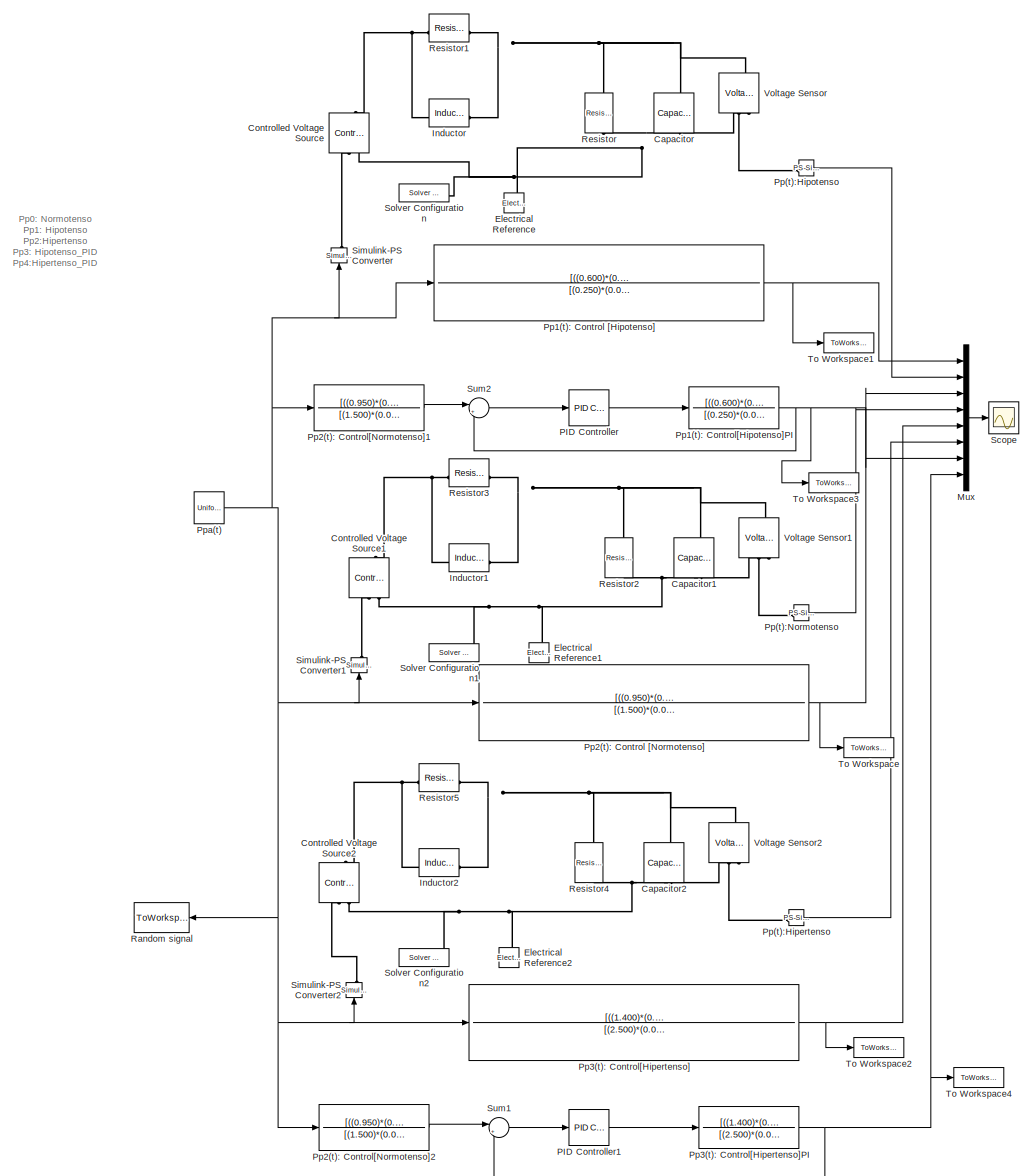
[diagram: root canvas - part 1/1, most of the canvas]
MODEL slx_050f58ca0db8
KIND model
CONFIG AbsTol = auto
CONFIG EnableMultiTasking = off
CONFIG FixedStep = auto
CONFIG MaxStep = 1E-3
CONFIG MinStep = auto
CONFIG RelTol = 1e-3
CONFIG SampleTimeConstraint = Unconstrained
CONFIG SolverName = ode23t
CONFIG StartTime = 0.0
CONFIG StopTime = 10.0
BLOCK [Reference] Capacitor  REF=fl_lib/Electrical/Electrical Elements/Capacitor
  NameLocation = left
  SourceBlock = fl_lib/Electrical/Electrical Elements/Capacitor
  SourceType = Capacitor
BLOCK [Reference] Capacitor1  REF=fl_lib/Electrical/Electrical Elements/Capacitor
  NameLocation = left
  SourceBlock = fl_lib/Electrical/Electrical Elements/Capacitor
  SourceType = Capacitor
BLOCK [Reference] Capacitor2  REF=fl_lib/Electrical/Electrical Elements/Capacitor
  NameLocation = left
  SourceBlock = fl_lib/Electrical/Electrical Elements/Capacitor
  SourceType = Capacitor
BLOCK [Reference] Controlled Voltage Source  REF=fl_lib/Electrical/Electrical Sources/Controlled Voltage
Source
  NameLocation = right
  SourceBlock = fl_lib/Electrical/Electrical Sources/Controlled Voltage\nSource
  SourceType = Controlled Voltage\nSource
BLOCK [Reference] Controlled Voltage Source1  REF=fl_lib/Electrical/Electrical Sources/Controlled Voltage
Source
  NameLocation = right
  SourceBlock = fl_lib/Electrical/Electrical Sources/Controlled Voltage\nSource
  SourceType = Controlled Voltage\nSource
BLOCK [Reference] Controlled Voltage Source2  REF=fl_lib/Electrical/Electrical Sources/Controlled Voltage
Source
  NameLocation = right
  SourceBlock = fl_lib/Electrical/Electrical Sources/Controlled Voltage\nSource
  SourceType = Controlled Voltage\nSource
BLOCK [Reference] Electrical Reference  REF=fl_lib/Electrical/Electrical Elements/Electrical Reference
  NameLocation = right
  SourceBlock = fl_lib/Electrical/Electrical Elements/Electrical Reference
  SourceType = Electrical Reference
BLOCK [Reference] Electrical Reference1  REF=fl_lib/Electrical/Electrical Elements/Electrical Reference
  NameLocation = right
  SourceBlock = fl_lib/Electrical/Electrical Elements/Electrical Reference
  SourceType = Electrical Reference
BLOCK [Reference] Electrical Reference2  REF=fl_lib/Electrical/Electrical Elements/Electrical Reference
  NameLocation = right
  SourceBlock = fl_lib/Electrical/Electrical Elements/Electrical Reference
  SourceType = Electrical Reference
BLOCK [Reference] Inductor  REF=fl_lib/Electrical/Electrical Elements/Inductor
  SourceBlock = fl_lib/Electrical/Electrical Elements/Inductor
  SourceType = Inductor
BLOCK [Reference] Inductor1  REF=fl_lib/Electrical/Electrical Elements/Inductor
  SourceBlock = fl_lib/Electrical/Electrical Elements/Inductor
  SourceType = Inductor
BLOCK [Reference] Inductor2  REF=fl_lib/Electrical/Electrical Elements/Inductor
  SourceBlock = fl_lib/Electrical/Electrical Elements/Inductor
  SourceType = Inductor
BLOCK [Mux] Mux
  DisplayOption = bar
  Inputs = 8
BLOCK [Reference] PID Controller  REF=slpidlib/PID Controller
  LibrarySourceBlock = simulink/Continuous/PID Controller
  SourceBlock = slpidlib/PID Controller
  SourceType = PID 1dof
BLOCK [Reference] PID Controller1  REF=slpidlib/PID Controller
  LibrarySourceBlock = simulink/Continuous/PID Controller
  SourceBlock = slpidlib/PID Controller
  SourceType = PID 1dof
BLOCK [Reference] Pp(t):Hipertenso  REF=nesl_utility/PS-Simulink
Converter
  SourceBlock = nesl_utility/PS-Simulink\nConverter
  SourceType = PS-Simulink\nConverter
BLOCK [Reference] Pp(t):Hipotenso  REF=nesl_utility/PS-Simulink
Converter
  SourceBlock = nesl_utility/PS-Simulink\nConverter
  SourceType = PS-Simulink\nConverter
BLOCK [Reference] Pp(t):Normotenso  REF=nesl_utility/PS-Simulink
Converter
  SourceBlock = nesl_utility/PS-Simulink\nConverter
  SourceType = PS-Simulink\nConverter
BLOCK [TransferFcn] Pp1(t): Control [Hipotenso]
  Denominator = [(0.250)*(0.005)*(0.600)*(0.020),((0.005)*(0.020))+((0.005)*(0.600)),((0.600)*(0.020))]
  Numerator = [((0.600)*(0.005)),(0.600*(0.020))]
BLOCK [TransferFcn] Pp1(t): Control[Hipotenso]PI
  Denominator = [(0.250)*(0.005)*(0.600)*(0.020),((0.005)*(0.020))+((0.005)*(0.600)),((0.600)*(0.020))]
  Numerator = [((0.600)*(0.005)),(0.600*(0.020))]
BLOCK [TransferFcn] Pp2(t): Control [Normotenso]
  Denominator = [(1.500)*(0.010)*(0.950)*(0.033),((0.010)*(0.033))+((0.010)*(0.950)),((0.950)*(0.033))]
  Numerator = [((0.950)*(0.010)),(0.950*(0.033))]
BLOCK [TransferFcn] Pp2(t): Control[Normotenso]1
  Denominator = [(1.500)*(0.010)*(0.950)*(0.033),((0.010)*(0.033))+((0.010)*(0.950)),((0.950)*(0.033))]
  Numerator = [((0.950)*(0.010)),(0.950*(0.033))]
BLOCK [TransferFcn] Pp2(t): Control[Normotenso]2
  Denominator = [(1.500)*(0.010)*(0.950)*(0.033),((0.010)*(0.033))+((0.010)*(0.950)),((0.950)*(0.033))]
  Numerator = [((0.950)*(0.010)),(0.950*(0.033))]
BLOCK [TransferFcn] Pp3(t): Control[Hipertenso]
  Denominator = [(2.500)*(0.020)*(1.400)*(0.050),((0.020)*(0.050))+((0.020)*(1.400)),((1.400)*(0.050))]
  Numerator = [((1.400)*(0.020)),(1.400*(0.050))]
BLOCK [TransferFcn] Pp3(t): Control[Hipertenso]PI
  Denominator = [(2.500)*(0.020)*(1.400)*(0.050),((0.020)*(0.050))+((0.020)*(1.400)),((1.400)*(0.050))]
  Numerator = [((1.400)*(0.020)),(1.400*(0.050))]
BLOCK [UniformRandomNumber] Ppa(t)
  Minimum = -0.2
  SampleTime = 0.5
  Seed = 106
BLOCK [ToWorkspace] Random signal
  FixptAsFi = on
  MaxDataPoints = inf
  SampleTime = -1
  VariableName = Ppa
BLOCK [Reference] Resistor  REF=fl_lib/Electrical/Electrical Elements/Resistor
  NameLocation = left
  SourceBlock = fl_lib/Electrical/Electrical Elements/Resistor
  SourceType = Resistor
BLOCK [Reference] Resistor1  REF=fl_lib/Electrical/Electrical Elements/Resistor
  SourceBlock = fl_lib/Electrical/Electrical Elements/Resistor
  SourceType = Resistor
BLOCK [Reference] Resistor2  REF=fl_lib/Electrical/Electrical Elements/Resistor
  NameLocation = left
  SourceBlock = fl_lib/Electrical/Electrical Elements/Resistor
  SourceType = Resistor
BLOCK [Reference] Resistor3  REF=fl_lib/Electrical/Electrical Elements/Resistor
  SourceBlock = fl_lib/Electrical/Electrical Elements/Resistor
  SourceType = Resistor
BLOCK [Reference] Resistor4  REF=fl_lib/Electrical/Electrical Elements/Resistor
  NameLocation = left
  SourceBlock = fl_lib/Electrical/Electrical Elements/Resistor
  SourceType = Resistor
BLOCK [Reference] Resistor5  REF=fl_lib/Electrical/Electrical Elements/Resistor
  SourceBlock = fl_lib/Electrical/Electrical Elements/Resistor
  SourceType = Resistor
BLOCK [Scope] Scope
  Floating = off
  NumInputPorts = 1
  ScopeSpecificationString = Simulink.scopes.TimeScopeBlockCfg('CurrentConfiguration', extmgr.ConfigurationSet(extmgr.Configuration('Core','General UI',true,'FigureColor',[1 1 1]),extmgr.Configuration('Core','Source UI',true),extmgr.Configuration('Sources','WiredSimulink',true),extmgr.Configuration('Visuals','Time Domain',true,'SerializedDisplays',{struct('MinYLimReal','-0.32973','MaxYLimReal','1.25643','YLabelReal','','MinYL...<+2640ch>
BLOCK [Reference] Simulink-PS Converter  REF=nesl_utility/Simulink-PS
Converter
  NameLocation = right
  SourceBlock = nesl_utility/Simulink-PS\nConverter
  SourceType = Simulink-PS\nConverter
BLOCK [Reference] Simulink-PS Converter1  REF=nesl_utility/Simulink-PS
Converter
  NameLocation = right
  SourceBlock = nesl_utility/Simulink-PS\nConverter
  SourceType = Simulink-PS\nConverter
BLOCK [Reference] Simulink-PS Converter2  REF=nesl_utility/Simulink-PS
Converter
  NameLocation = right
  SourceBlock = nesl_utility/Simulink-PS\nConverter
  SourceType = Simulink-PS\nConverter
BLOCK [Reference] Solver Configuration  REF=nesl_utility/Solver
Configuration
  SourceBlock = nesl_utility/Solver\nConfiguration
  SourceType = Solver\nConfiguration
BLOCK [Reference] Solver Configuration1  REF=nesl_utility/Solver
Configuration
  SourceBlock = nesl_utility/Solver\nConfiguration
  SourceType = Solver\nConfiguration
BLOCK [Reference] Solver Configuration2  REF=nesl_utility/Solver
Configuration
  SourceBlock = nesl_utility/Solver\nConfiguration
  SourceType = Solver\nConfiguration
BLOCK [Sum] Sum1
  Inputs = |+-
BLOCK [Sum] Sum2
  Inputs = |+-
BLOCK [ToWorkspace] To Workspace
  FixptAsFi = on
  MaxDataPoints = inf
  SampleTime = -1
  VariableName = Pp0
BLOCK [ToWorkspace] To Workspace1
  FixptAsFi = on
  MaxDataPoints = inf
  SampleTime = -1
  VariableName = Pp1
BLOCK [ToWorkspace] To Workspace2
  FixptAsFi = on
  MaxDataPoints = inf
  SampleTime = -1
  VariableName = Pp2
BLOCK [ToWorkspace] To Workspace3
  FixptAsFi = on
  MaxDataPoints = inf
  SampleTime = -1
  VariableName = Pp3
BLOCK [ToWorkspace] To Workspace4
  FixptAsFi = on
  MaxDataPoints = inf
  SampleTime = -1
  VariableName = Pp4
BLOCK [Reference] Voltage Sensor  REF=fl_lib/Electrical/Electrical Sensors/Voltage Sensor
  NameLocation = right
  SourceBlock = fl_lib/Electrical/Electrical Sensors/Voltage Sensor
  SourceType = Voltage Sensor
BLOCK [Reference] Voltage Sensor1  REF=fl_lib/Electrical/Electrical Sensors/Voltage Sensor
  NameLocation = right
  SourceBlock = fl_lib/Electrical/Electrical Sensors/Voltage Sensor
  SourceType = Voltage Sensor
BLOCK [Reference] Voltage Sensor2  REF=fl_lib/Electrical/Electrical Sensors/Voltage Sensor
  NameLocation = right
  SourceBlock = fl_lib/Electrical/Electrical Sensors/Voltage Sensor
  SourceType = Voltage Sensor
ANNOTATION (root): Pp0: Normotenso Pp1: Hipotenso Pp2:Hipertenso Pp3: Hipotenso_PID Pp4:Hipertenso_PID
LINE Mux:1 -> Scope:1
LINE PID Controller1:1 -> Pp3(t): Control[Hipertenso]PI:1
LINE PID Controller:1 -> Pp1(t): Control[Hipotenso]PI:1
LINE Pp(t):Hipertenso:1 -> Mux:6
LINE Pp(t):Hipotenso:1 -> Mux:2
LINE Pp(t):Normotenso:1 -> Mux:4
NET Pp1(t): Control [Hipotenso]:1 -> Mux:1, To Workspace1:1
NET Pp1(t): Control[Hipotenso]PI:1 -> Mux:7, Sum2:2, To Workspace3:1
NET Pp2(t): Control [Normotenso]:1 -> Mux:3, To Workspace:1
LINE Pp2(t): Control[Normotenso]1:1 -> Sum2:1
LINE Pp2(t): Control[Normotenso]2:1 -> Sum1:1
NET Pp3(t): Control[Hipertenso]:1 -> Mux:5, To Workspace2:1
NET Pp3(t): Control[Hipertenso]PI:1 -> Mux:8, Sum1:2, To Workspace4:1
NET Ppa(t):1 -> Pp1(t): Control [Hipotenso]:1, Pp2(t): Control [Normotenso]:1, Pp2(t): Control[Normotenso]1:1, Pp2(t): Control[Normotenso]2:1, Pp3(t): Control[Hipertenso]:1, Random signal:1, Simulink-PS Converter1:1, Simulink-PS Converter2:1, Simulink-PS Converter:1
LINE Sum1:1 -> PID Controller1:1
LINE Sum2:1 -> PID Controller:1
PNET net1: Capacitor1:LConn1 -- Inductor1:RConn1 -- Resistor2:LConn1 -- Resistor3:RConn1 -- Voltage Sensor1:LConn1
PNET net2: Capacitor1:RConn1 -- Controlled Voltage Source1:RConn2 -- Electrical Reference1:LConn1 -- Resistor2:RConn1 -- Solver Configuration1:RConn1 -- Voltage Sensor1:RConn2
PNET net3: Capacitor2:LConn1 -- Inductor2:RConn1 -- Resistor4:LConn1 -- Resistor5:RConn1 -- Voltage Sensor2:LConn1
PNET net4: Capacitor2:RConn1 -- Controlled Voltage Source2:RConn2 -- Electrical Reference2:LConn1 -- Resistor4:RConn1 -- Solver Configuration2:RConn1 -- Voltage Sensor2:RConn2
PNET net5: Capacitor:LConn1 -- Inductor:RConn1 -- Resistor1:RConn1 -- Resistor:LConn1 -- Voltage Sensor:LConn1
PNET net6: Capacitor:RConn1 -- Controlled Voltage Source:RConn2 -- Electrical Reference:LConn1 -- Resistor:RConn1 -- Solver Configuration:RConn1 -- Voltage Sensor:RConn2
PNET net7: Controlled Voltage Source1:LConn1 -- Inductor1:LConn1 -- Resistor3:LConn1
PLINE Controlled Voltage Source1:RConn1 -- Simulink-PS Converter1:RConn1
PNET net8: Controlled Voltage Source2:LConn1 -- Inductor2:LConn1 -- Resistor5:LConn1
PLINE Controlled Voltage Source2:RConn1 -- Simulink-PS Converter2:RConn1
PNET net9: Controlled Voltage Source:LConn1 -- Inductor:LConn1 -- Resistor1:LConn1
PLINE Controlled Voltage Source:RConn1 -- Simulink-PS Converter:RConn1
PLINE Pp(t):Hipertenso:LConn1 -- Voltage Sensor2:RConn1
PLINE Pp(t):Hipotenso:LConn1 -- Voltage Sensor:RConn1
PLINE Pp(t):Normotenso:LConn1 -- Voltage Sensor1:RConn1
note: NET lines group one-source signal fan-out (src -> all destinations, sorted); 1:1 wires keep LINE; PNET lines group multi-terminal physical nets as a canonical sorted terminal list (undirected conserving connections); 2-terminal nets keep the pairwise PLINE form
